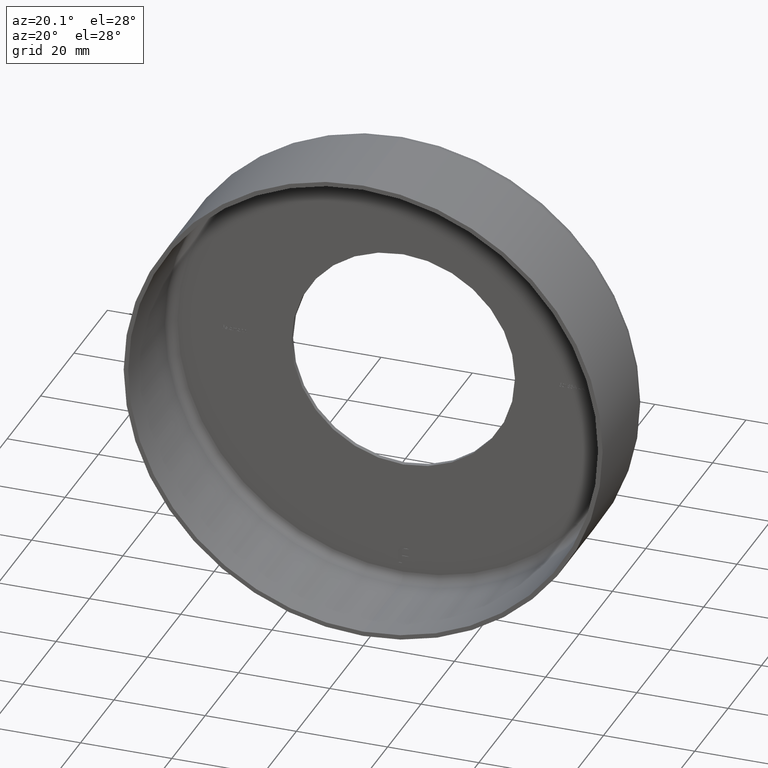
[diagram: clean part render]
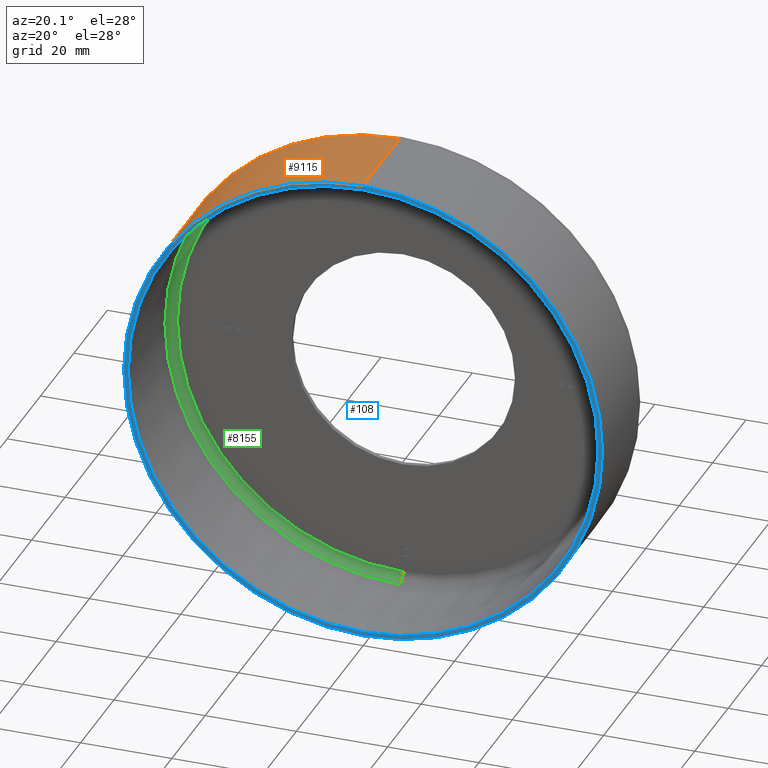
[diagram: same view with three faces highlighted in distinct colors, each labeled with its STEP entity id]
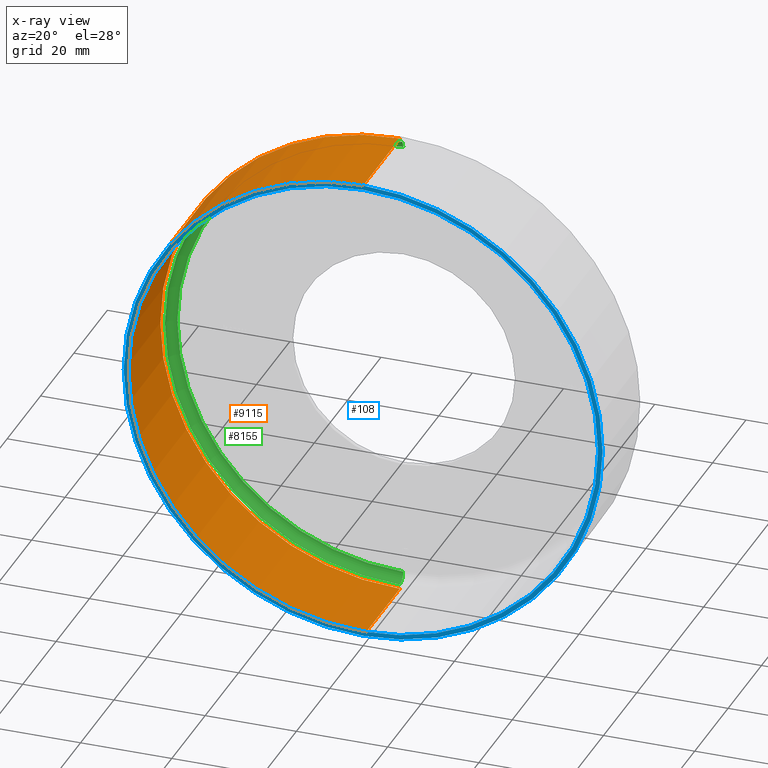
[diagram: x-ray of the same camera — body ghosted, the three highlighted faces saturated]
A machine part, auxiliary view with three faces highlighted in distinct colors.
The next image is the same camera in x-ray (body ghosted, the three faces saturated) — at least one of them is partly hidden behind the body in this view.
Their STEP definitions:

[orange] entity #9115 — the highlighted cylindrical surface (partial cylindrical patch) has radius 52.5 mm, axis along (-0, -1, -0).
#216 = AXIS2_PLACEMENT_3D ( 'NONE', #4034, #11899, #2947 ) ;
#324 = DIRECTION ( 'NONE',  ( -0.000000000000000000, -1.000000000000000000, -0.000000000000000000 ) ) ;
#1032 = CIRCLE ( 'NONE', #216, 52.50000000000000711 ) ;
#1146 = LINE ( 'NONE', #13195, #11332 ) ;
#1954 = VERTEX_POINT ( 'NONE', #2461 ) ;
#2206 = EDGE_CURVE ( 'NONE', #1954, #14403, #1032, .T. ) ;
#2228 = DIRECTION ( 'NONE',  ( 0.000000000000000000, 0.000000000000000000, -1.000000000000000000 ) ) ;
#2461 = CARTESIAN_POINT ( 'NONE',  ( 6.429395695523604744E-15, 0.000000000000000000, 52.50000000000000711 ) ) ;
#2947 = DIRECTION ( 'NONE',  ( 0.000000000000000000, 0.000000000000000000, -1.000000000000000000 ) ) ;
#3404 = CARTESIAN_POINT ( 'NONE',  ( 0.000000000000000000, 0.000000000000000000, 0.000000000000000000 ) ) ;
#4034 = CARTESIAN_POINT ( 'NONE',  ( 0.000000000000000000, 0.000000000000000000, 0.000000000000000000 ) ) ;
#4607 = VERTEX_POINT ( 'NONE', #4954 ) ;
#4954 = CARTESIAN_POINT ( 'NONE',  ( 6.429395695523604744E-15, 22.00000000000000355, 52.50000000000000711 ) ) ;
#5082 = VERTEX_POINT ( 'NONE', #12366 ) ;
#5210 = CARTESIAN_POINT ( 'NONE',  ( 0.000000000000000000, 0.000000000000000000, -52.50000000000000711 ) ) ;
#5316 = EDGE_CURVE ( 'NONE', #4607, #1954, #11528, .T. ) ;
#6017 = CYLINDRICAL_SURFACE ( 'NONE', #6753, 52.50000000000000711 ) ;
#6197 = EDGE_CURVE ( 'NONE', #5082, #14403, #1146, .T. ) ;
#6362 = CARTESIAN_POINT ( 'NONE',  ( 6.429395695523604744E-15, 0.000000000000000000, 52.50000000000000711 ) ) ;
#6468 = DIRECTION ( 'NONE',  ( -0.000000000000000000, -1.000000000000000000, -0.000000000000000000 ) ) ;
#6527 = EDGE_LOOP ( 'NONE', ( #10350, #13762, #14198, #9090 ) ) ;
#6606 = VECTOR ( 'NONE', #8762, 1000.000000000000000 ) ;
#6753 = AXIS2_PLACEMENT_3D ( 'NONE', #3404, #10225, #2228 ) ;
#6818 = EDGE_CURVE ( 'NONE', #4607, #5082, #9241, .T. ) ;
#8402 = CARTESIAN_POINT ( 'NONE',  ( 0.000000000000000000, 22.00000000000000355, 0.000000000000000000 ) ) ;
#8762 = DIRECTION ( 'NONE',  ( -0.000000000000000000, -1.000000000000000000, -0.000000000000000000 ) ) ;
#9090 = ORIENTED_EDGE ( 'NONE', *, *, #2206, .F. ) ;
#9115 = ADVANCED_FACE ( 'NONE', ( #12523 ), #6017, .T. ) ;
#9241 = CIRCLE ( 'NONE', #9834, 52.50000000000000711 ) ;
#9834 = AXIS2_PLACEMENT_3D ( 'NONE', #8402, #324, #13996 ) ;
#10225 = DIRECTION ( 'NONE',  ( -0.000000000000000000, -1.000000000000000000, -0.000000000000000000 ) ) ;
#10350 = ORIENTED_EDGE ( 'NONE', *, *, #5316, .F. ) ;
#11332 = VECTOR ( 'NONE', #6468, 1000.000000000000000 ) ;
#11528 = LINE ( 'NONE', #6362, #6606 ) ;
#11899 = DIRECTION ( 'NONE',  ( -0.000000000000000000, -1.000000000000000000, -0.000000000000000000 ) ) ;
#12366 = CARTESIAN_POINT ( 'NONE',  ( 0.000000000000000000, 22.00000000000000355, -52.50000000000000711 ) ) ;
#12523 = FACE_OUTER_BOUND ( 'NONE', #6527, .T. ) ;
#13195 = CARTESIAN_POINT ( 'NONE',  ( 0.000000000000000000, 0.000000000000000000, -52.50000000000000711 ) ) ;
#13762 = ORIENTED_EDGE ( 'NONE', *, *, #6818, .T. ) ;
#13996 = DIRECTION ( 'NONE',  ( 0.000000000000000000, 0.000000000000000000, -1.000000000000000000 ) ) ;
#14198 = ORIENTED_EDGE ( 'NONE', *, *, #6197, .T. ) ;
#14403 = VERTEX_POINT ( 'NONE', #5210 ) ;

[blue] entity #108 — the highlighted planar face has unit normal (0, -1, -0).
#108 = ADVANCED_FACE ( 'NONE', ( #2878, #8526 ), #7258, .T. ) ;
#208 = ORIENTED_EDGE ( 'NONE', *, *, #6860, .F. ) ;
#216 = AXIS2_PLACEMENT_3D ( 'NONE', #4034, #11899, #2947 ) ;
#330 = CARTESIAN_POINT ( 'NONE',  ( 0.000000000000000000, 0.000000000000000000, 0.000000000000000000 ) ) ;
#496 = DIRECTION ( 'NONE',  ( 0.000000000000000000, 0.000000000000000000, -1.000000000000000000 ) ) ;
#618 = AXIS2_PLACEMENT_3D ( 'NONE', #5010, #12750, #8243 ) ;
#1032 = CIRCLE ( 'NONE', #216, 52.50000000000000711 ) ;
#1954 = VERTEX_POINT ( 'NONE', #2461 ) ;
#1970 = EDGE_LOOP ( 'NONE', ( #14576, #5276 ) ) ;
#2025 = AXIS2_PLACEMENT_3D ( 'NONE', #330, #4912, #13898 ) ;
#2206 = EDGE_CURVE ( 'NONE', #1954, #14403, #1032, .T. ) ;
#2461 = CARTESIAN_POINT ( 'NONE',  ( 6.429395695523604744E-15, 0.000000000000000000, 52.50000000000000711 ) ) ;
#2485 = VERTEX_POINT ( 'NONE', #9338 ) ;
#2600 = DIRECTION ( 'NONE',  ( -0.000000000000000000, -1.000000000000000000, -0.000000000000000000 ) ) ;
#2878 = FACE_OUTER_BOUND ( 'NONE', #1970, .T. ) ;
#2947 = DIRECTION ( 'NONE',  ( 0.000000000000000000, 0.000000000000000000, -1.000000000000000000 ) ) ;
#3107 = CARTESIAN_POINT ( 'NONE',  ( 51.50000000000000711, -6.123233995736766036E-17, 0.000000000000000000 ) ) ;
#3736 = CIRCLE ( 'NONE', #2025, 52.50000000000000711 ) ;
#4034 = CARTESIAN_POINT ( 'NONE',  ( 0.000000000000000000, 0.000000000000000000, 0.000000000000000000 ) ) ;
#4140 = VERTEX_POINT ( 'NONE', #13380 ) ;
#4148 = DIRECTION ( 'NONE',  ( 0.000000000000000000, 0.000000000000000000, -1.000000000000000000 ) ) ;
#4912 = DIRECTION ( 'NONE',  ( -0.000000000000000000, -1.000000000000000000, -0.000000000000000000 ) ) ;
#5010 = CARTESIAN_POINT ( 'NONE',  ( 0.000000000000000000, -1.224646799147353207E-16, 0.000000000000000000 ) ) ;
#5210 = CARTESIAN_POINT ( 'NONE',  ( 0.000000000000000000, 0.000000000000000000, -52.50000000000000711 ) ) ;
#5276 = ORIENTED_EDGE ( 'NONE', *, *, #2206, .T. ) ;
#6860 = EDGE_CURVE ( 'NONE', #4140, #2485, #12386, .T. ) ;
#7258 = PLANE ( 'NONE',  #10648 ) ;
#7259 = ORIENTED_EDGE ( 'NONE', *, *, #13372, .F. ) ;
#8078 = EDGE_CURVE ( 'NONE', #14403, #1954, #3736, .T. ) ;
#8243 = DIRECTION ( 'NONE',  ( 0.000000000000000000, 0.000000000000000000, -1.000000000000000000 ) ) ;
#8526 = FACE_BOUND ( 'NONE', #9061, .T. ) ;
#9061 = EDGE_LOOP ( 'NONE', ( #7259, #208 ) ) ;
#9338 = CARTESIAN_POINT ( 'NONE',  ( 0.000000000000000000, -1.224646799147353207E-16, -51.50000000000000711 ) ) ;
#10321 = AXIS2_PLACEMENT_3D ( 'NONE', #12818, #2600, #496 ) ;
#10648 = AXIS2_PLACEMENT_3D ( 'NONE', #3107, #12998, #4148 ) ;
#10700 = CIRCLE ( 'NONE', #10321, 51.50000000000000711 ) ;
#11899 = DIRECTION ( 'NONE',  ( -0.000000000000000000, -1.000000000000000000, -0.000000000000000000 ) ) ;
#12386 = CIRCLE ( 'NONE', #618, 51.50000000000000711 ) ;
#12750 = DIRECTION ( 'NONE',  ( -0.000000000000000000, -1.000000000000000000, -0.000000000000000000 ) ) ;
#12818 = CARTESIAN_POINT ( 'NONE',  ( 0.000000000000000000, -1.224646799147353207E-16, 0.000000000000000000 ) ) ;
#12998 = DIRECTION ( 'NONE',  ( 0.000000000000000000, -1.000000000000000000, -0.000000000000000000 ) ) ;
#13372 = EDGE_CURVE ( 'NONE', #2485, #4140, #10700, .T. ) ;
#13380 = CARTESIAN_POINT ( 'NONE',  ( 6.306931015608869596E-15, -1.224646799147353207E-16, 51.50000000000000711 ) ) ;
#13898 = DIRECTION ( 'NONE',  ( 0.000000000000000000, 0.000000000000000000, -1.000000000000000000 ) ) ;
#14403 = VERTEX_POINT ( 'NONE', #5210 ) ;
#14576 = ORIENTED_EDGE ( 'NONE', *, *, #8078, .T. ) ;

[green] entity #8155 — the highlighted toroidal blend (fillet) surface has major radius 49.5 mm and minor (blend) radius 2 mm.
#588 = FACE_OUTER_BOUND ( 'NONE', #7389, .T. ) ;
#796 = DIRECTION ( 'NONE',  ( -0.000000000000000000, -1.000000000000000000, -0.000000000000000000 ) ) ;
#1899 = VERTEX_POINT ( 'NONE', #13379 ) ;
#2262 = EDGE_CURVE ( 'NONE', #14282, #2851, #10326, .T. ) ;
#2520 = DIRECTION ( 'NONE',  ( -1.000000000000000000, 0.000000000000000000, 0.000000000000000000 ) ) ;
#2614 = CARTESIAN_POINT ( 'NONE',  ( 0.000000000000000000, 22.00000000000000355, -49.50000000000000000 ) ) ;
#2726 = CIRCLE ( 'NONE', #9456, 2.000000000000001776 ) ;
#2851 = VERTEX_POINT ( 'NONE', #11965 ) ;
#3036 = AXIS2_PLACEMENT_3D ( 'NONE', #12188, #796, #5450 ) ;
#3529 = EDGE_CURVE ( 'NONE', #1899, #9004, #8742, .T. ) ;
#3732 = DIRECTION ( 'NONE',  ( 0.000000000000000000, 0.000000000000000000, -1.000000000000000000 ) ) ;
#3810 = DIRECTION ( 'NONE',  ( -0.000000000000000000, -1.000000000000000000, -0.000000000000000000 ) ) ;
#3882 = CARTESIAN_POINT ( 'NONE',  ( 0.000000000000000000, 24.00000000000000000, 0.000000000000000000 ) ) ;
#4491 = AXIS2_PLACEMENT_3D ( 'NONE', #11497, #3810, #5932 ) ;
#4733 = DIRECTION ( 'NONE',  ( -1.224646799147353454E-16, 0.000000000000000000, -1.000000000000000000 ) ) ;
#5450 = DIRECTION ( 'NONE',  ( 0.000000000000000000, 0.000000000000000000, -1.000000000000000000 ) ) ;
#5469 = EDGE_CURVE ( 'NONE', #1899, #14282, #2726, .T. ) ;
#5542 = CARTESIAN_POINT ( 'NONE',  ( 6.306931015608869596E-15, 22.00000000000000355, 51.50000000000000711 ) ) ;
#5932 = DIRECTION ( 'NONE',  ( 0.000000000000000000, 0.000000000000000000, -1.000000000000000000 ) ) ;
#6975 = AXIS2_PLACEMENT_3D ( 'NONE', #2614, #2520, #7057 ) ;
#6996 = DIRECTION ( 'NONE',  ( 1.000000000000000000, 0.000000000000000000, -1.224646799147353207E-16 ) ) ;
#7057 = DIRECTION ( 'NONE',  ( 0.000000000000000000, 0.000000000000000000, 1.000000000000000000 ) ) ;
#7389 = EDGE_LOOP ( 'NONE', ( #10395, #9750, #10809, #12926 ) ) ;
#8155 = ADVANCED_FACE ( 'NONE', ( #588 ), #11480, .F. ) ;
#8742 = CIRCLE ( 'NONE', #13868, 49.50000000000000000 ) ;
#9004 = VERTEX_POINT ( 'NONE', #13241 ) ;
#9352 = DIRECTION ( 'NONE',  ( -0.000000000000000000, -1.000000000000000000, -0.000000000000000000 ) ) ;
#9456 = AXIS2_PLACEMENT_3D ( 'NONE', #10216, #6996, #4733 ) ;
#9750 = ORIENTED_EDGE ( 'NONE', *, *, #5469, .T. ) ;
#10216 = CARTESIAN_POINT ( 'NONE',  ( 6.062001655779398511E-15, 22.00000000000000355, 49.50000000000000000 ) ) ;
#10326 = CIRCLE ( 'NONE', #3036, 51.50000000000000711 ) ;
#10395 = ORIENTED_EDGE ( 'NONE', *, *, #3529, .F. ) ;
#10809 = ORIENTED_EDGE ( 'NONE', *, *, #2262, .T. ) ;
#11480 = TOROIDAL_SURFACE ( 'NONE', #4491, 49.50000000000000000, 2.000000000000000000 ) ;
#11497 = CARTESIAN_POINT ( 'NONE',  ( 0.000000000000000000, 22.00000000000000355, 0.000000000000000000 ) ) ;
#11965 = CARTESIAN_POINT ( 'NONE',  ( 0.000000000000000000, 22.00000000000000355, -51.50000000000000711 ) ) ;
#12188 = CARTESIAN_POINT ( 'NONE',  ( 0.000000000000000000, 22.00000000000000355, 0.000000000000000000 ) ) ;
#12926 = ORIENTED_EDGE ( 'NONE', *, *, #14046, .F. ) ;
#13086 = CIRCLE ( 'NONE', #6975, 2.000000000000001776 ) ;
#13241 = CARTESIAN_POINT ( 'NONE',  ( 0.000000000000000000, 24.00000000000000000, -49.50000000000000000 ) ) ;
#13379 = CARTESIAN_POINT ( 'NONE',  ( 6.184466335694133659E-15, 24.00000000000000000, 49.50000000000000000 ) ) ;
#13868 = AXIS2_PLACEMENT_3D ( 'NONE', #3882, #9352, #3732 ) ;
#14046 = EDGE_CURVE ( 'NONE', #9004, #2851, #13086, .T. ) ;
#14282 = VERTEX_POINT ( 'NONE', #5542 ) ;